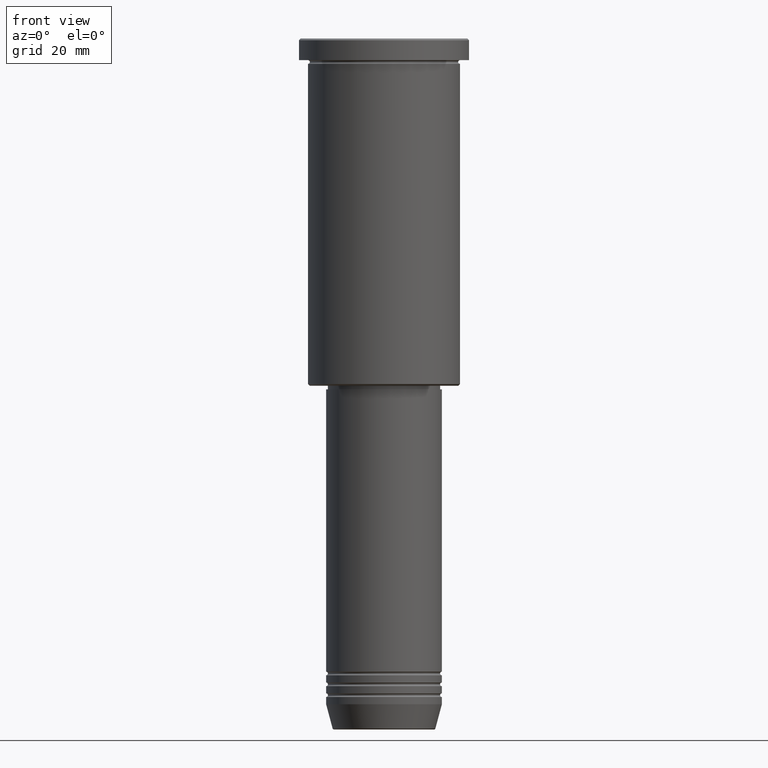
[diagram: clean part render]
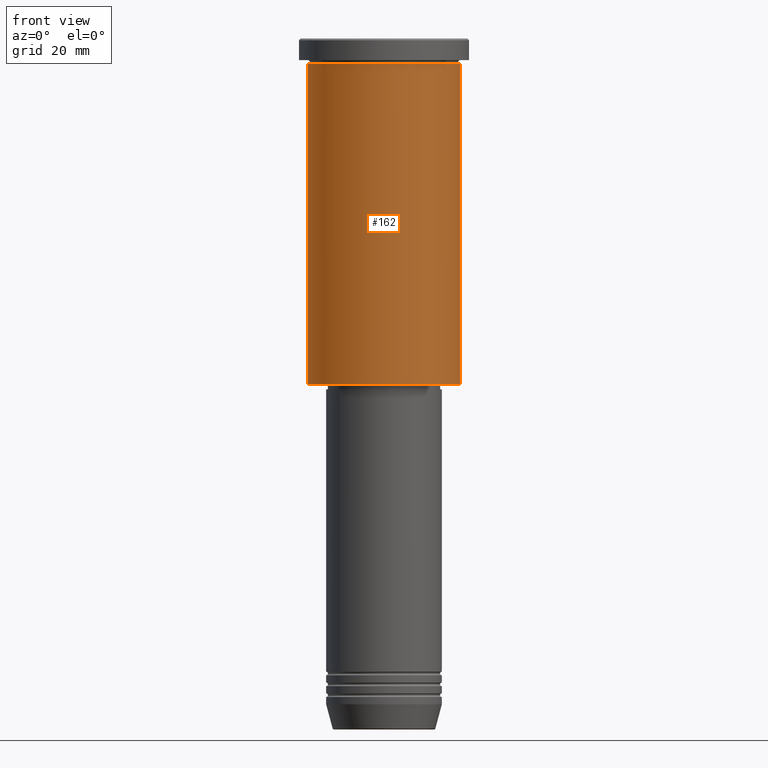
[diagram: same view with one face highlighted and labeled with its STEP entity id]
A machine part, front view. The second image highlights one B-rep face of the part: STEP entity #162.
In plain terms, the highlighted cylindrical surface (partial cylindrical patch) has radius 21 mm, axis along (-0, -0, 1).
Its self-contained STEP definition (entity closure, byte-faithful):
#24 = CARTESIAN_POINT ( 'NONE',  ( 21.00000000000000000, 0.000000000000000000, -95.50000000000001421 ) ) ;
#53 = ORIENTED_EDGE ( 'NONE', *, *, #1035, .T. ) ;
#64 = DIRECTION ( 'NONE',  ( -1.000000000000000000, 0.000000000000000000, 0.000000000000000000 ) ) ;
#76 = LINE ( 'NONE', #715, #826 ) ;
#132 = DIRECTION ( 'NONE',  ( -0.000000000000000000, -0.000000000000000000, 1.000000000000000000 ) ) ;
#133 = ORIENTED_EDGE ( 'NONE', *, *, #230, .F. ) ;
#162 = ADVANCED_FACE ( 'NONE', ( #832 ), #233, .T. ) ;
#174 = AXIS2_PLACEMENT_3D ( 'NONE', #648, #428, #64 ) ;
#178 = DIRECTION ( 'NONE',  ( 1.000000000000000000, 0.000000000000000000, 0.000000000000000000 ) ) ;
#189 = CIRCLE ( 'NONE', #174, 21.00000000000000000 ) ;
#211 = DIRECTION ( 'NONE',  ( 1.000000000000000000, 0.000000000000000000, 0.000000000000000000 ) ) ;
#230 = EDGE_CURVE ( 'NONE', #263, #800, #671, .T. ) ;
#233 = CYLINDRICAL_SURFACE ( 'NONE', #675, 21.00000000000000000 ) ;
#239 = VERTEX_POINT ( 'NONE', #24 ) ;
#262 = CARTESIAN_POINT ( 'NONE',  ( -21.00000000000000000, 2.571758278209441661E-15, -95.50000000000001421 ) ) ;
#263 = VERTEX_POINT ( 'NONE', #262 ) ;
#308 = CARTESIAN_POINT ( 'NONE',  ( 0.000000000000000000, 0.000000000000000000, 0.000000000000000000 ) ) ;
#331 = VERTEX_POINT ( 'NONE', #623 ) ;
#362 = CARTESIAN_POINT ( 'NONE',  ( 0.000000000000000000, 0.000000000000000000, -6.999999999999994671 ) ) ;
#367 = DIRECTION ( 'NONE',  ( -0.000000000000000000, -0.000000000000000000, 1.000000000000000000 ) ) ;
#428 = DIRECTION ( 'NONE',  ( -0.000000000000000000, -0.000000000000000000, 1.000000000000000000 ) ) ;
#452 = EDGE_CURVE ( 'NONE', #800, #331, #1003, .T. ) ;
#459 = DIRECTION ( 'NONE',  ( -0.000000000000000000, -0.000000000000000000, 1.000000000000000000 ) ) ;
#492 = EDGE_CURVE ( 'NONE', #239, #331, #76, .T. ) ;
#623 = CARTESIAN_POINT ( 'NONE',  ( 21.00000000000000000, 0.000000000000000000, -6.999999999999994671 ) ) ;
#648 = CARTESIAN_POINT ( 'NONE',  ( 0.000000000000000000, 0.000000000000000000, -95.50000000000001421 ) ) ;
#671 = LINE ( 'NONE', #1031, #922 ) ;
#675 = AXIS2_PLACEMENT_3D ( 'NONE', #308, #1040, #211 ) ;
#715 = CARTESIAN_POINT ( 'NONE',  ( 21.00000000000000000, 0.000000000000000000, 0.000000000000000000 ) ) ;
#800 = VERTEX_POINT ( 'NONE', #1092 ) ;
#826 = VECTOR ( 'NONE', #367, 1000.000000000000000 ) ;
#832 = FACE_OUTER_BOUND ( 'NONE', #1082, .T. ) ;
#897 = ORIENTED_EDGE ( 'NONE', *, *, #492, .T. ) ;
#922 = VECTOR ( 'NONE', #132, 1000.000000000000000 ) ;
#1003 = CIRCLE ( 'NONE', #1094, 21.00000000000000000 ) ;
#1031 = CARTESIAN_POINT ( 'NONE',  ( -21.00000000000000000, 2.571758278209441661E-15, 0.000000000000000000 ) ) ;
#1035 = EDGE_CURVE ( 'NONE', #263, #239, #189, .T. ) ;
#1040 = DIRECTION ( 'NONE',  ( -0.000000000000000000, -0.000000000000000000, 1.000000000000000000 ) ) ;
#1076 = ORIENTED_EDGE ( 'NONE', *, *, #452, .F. ) ;
#1082 = EDGE_LOOP ( 'NONE', ( #133, #53, #897, #1076 ) ) ;
#1092 = CARTESIAN_POINT ( 'NONE',  ( -21.00000000000000000, 2.571758278209441661E-15, -6.999999999999994671 ) ) ;
#1094 = AXIS2_PLACEMENT_3D ( 'NONE', #362, #459, #178 ) ;